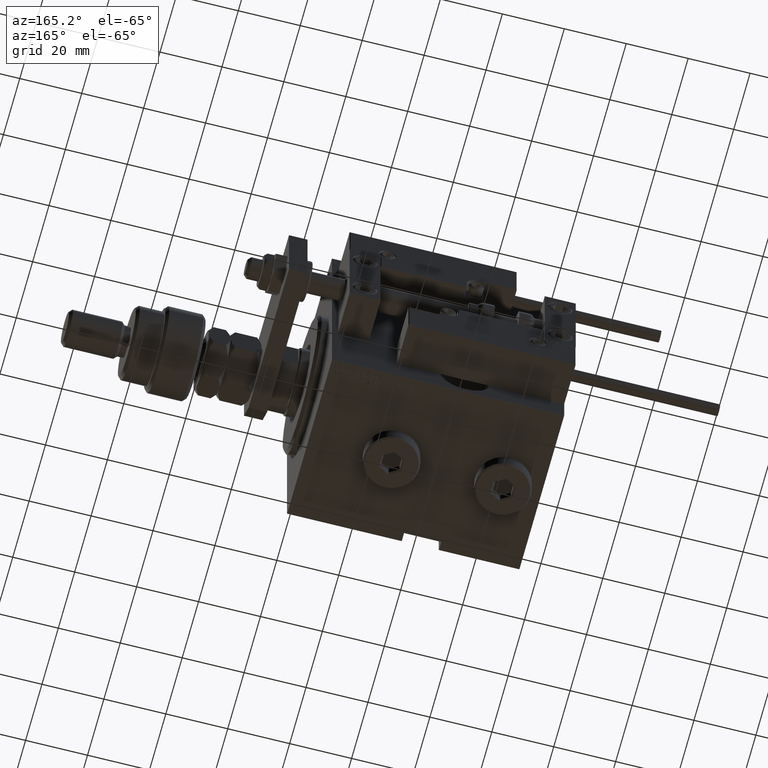
[diagram: clean part render]
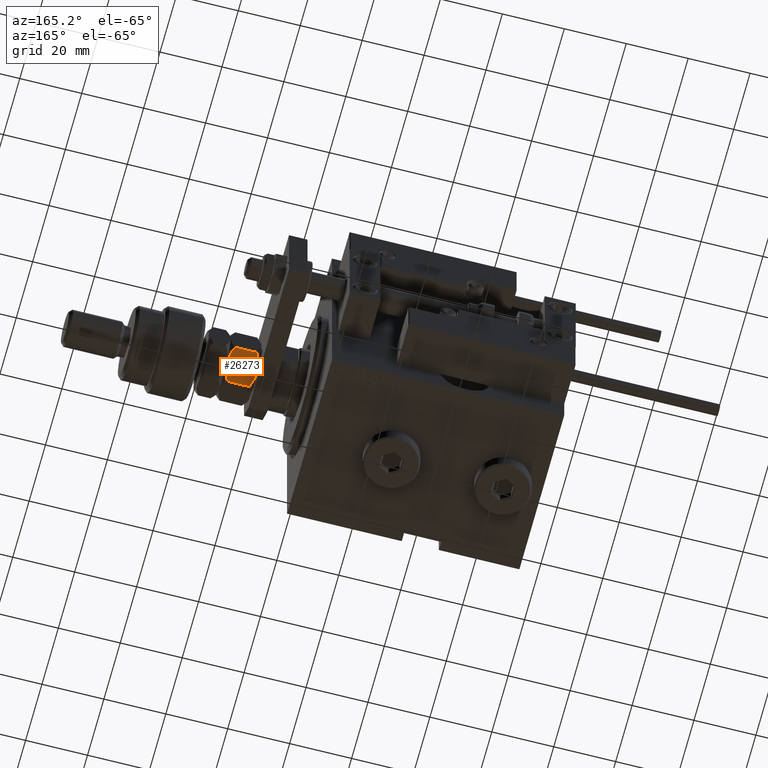
[diagram: same view with one face highlighted and labeled with its STEP entity id]
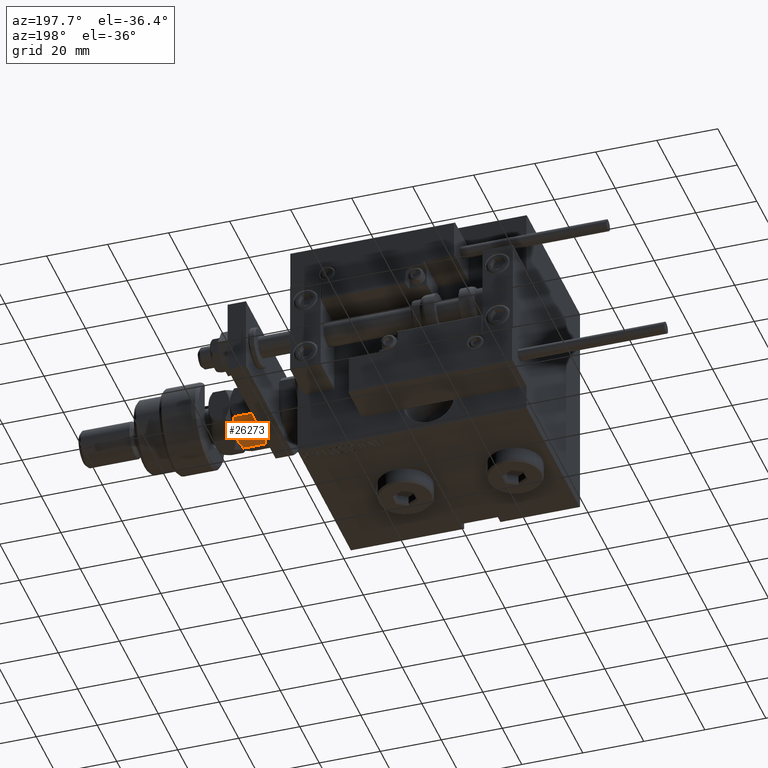
[diagram: same view with one face highlighted and labeled with its STEP entity id]
A machine part, auxiliary view. The second image highlights one B-rep face of the part: STEP entity #26273.
A second angle (auxiliary view) of the same face is appended — the face is thin or edge-on in the first view.
In plain terms, the highlighted planar face has unit normal (0, -0.5, 0.866).
Its self-contained STEP definition (entity closure, byte-faithful):
#825 = CARTESIAN_POINT ( 'NONE',  ( 3.091726368128225655, 9.184646063703393537, 0.1797418547120336607 ) ) ;
#1358 = VERTEX_POINT ( 'NONE', #13332 ) ;
#2118 = ORIENTED_EDGE ( 'NONE', *, *, #17212, .T. ) ;
#3269 = CARTESIAN_POINT ( 'NONE',  ( 3.111617971331827270, 9.173161641239184760, 9.854124384224535405 ) ) ;
#3812 = CARTESIAN_POINT ( 'NONE',  ( -3.412354640325339130E-17, 10.96965511460288667, 8.530344885397118659 ) ) ;
#4032 = AXIS2_PLACEMENT_3D ( 'NONE', #6812, #47361, #34845 ) ;
#4785 = CARTESIAN_POINT ( 'NONE',  ( 0.000000000000000000, 10.96965511460288667, 10.00000000000000000 ) ) ;
#4816 = CARTESIAN_POINT ( 'NONE',  ( 7.043584025308272669E-16, 10.96965511460288667, 1.469655114602882007 ) ) ;
#5281 = B_SPLINE_CURVE_WITH_KNOTS ( 'NONE', 3,
 ( #9899, #6069, #30293, #46882, #38730, #18050 ),
 .UNSPECIFIED., .F., .F.,
 ( 4, 2, 4 ),
 ( 0.005685775058177688912, 0.008508623398180321928, 0.01133147173818295668 ),
 .UNSPECIFIED. ) ;
#6069 = CARTESIAN_POINT ( 'NONE',  ( 5.576215397865947665, 7.750225653585646413, -3.354250471127028357E-16 ) ) ;
#6812 = CARTESIAN_POINT ( 'NONE',  ( 9.500000000000000000, 5.484827557301445111, 10.00000000000000000 ) ) ;
#7274 = ORIENTED_EDGE ( 'NONE', *, *, #44285, .F. ) ;
#8098 = EDGE_CURVE ( 'NONE', #46154, #21728, #18416, .T. ) ;
#8596 = B_SPLINE_CURVE_WITH_KNOTS ( 'NONE', 3,
 ( #53030, #24511, #3269, #28584, #28856, #3812 ),
 .UNSPECIFIED., .F., .F.,
 ( 4, 2, 4 ),
 ( 0.005685775058177690647, 0.008508623398180323663, 0.01133147173818295668 ),
 .UNSPECIFIED. ) ;
#8798 = CARTESIAN_POINT ( 'NONE',  ( 8.755131854751343923, 5.914877381471537632, 8.960394709567205851 ) ) ;
#9157 = LINE ( 'NONE', #4785, #35019 ) ;
#9413 = B_SPLINE_CURVE_WITH_KNOTS ( 'NONE', 3,
 ( #26133, #41648, #17433, #49804, #825, #13087, #22049, #42721 ),
 .UNSPECIFIED., .F., .F.,
 ( 4, 2, 2, 4 ),
 ( 2.544312669947371985E-07, 0.002843014744722341131, 0.004264394901450013937, 0.005685775058177688912 ),
 .UNSPECIFIED. ) ;
#9899 = CARTESIAN_POINT ( 'NONE',  ( 4.749999999999998224, 8.227241335952168555, 0.000000000000000000 ) ) ;
#10923 = DIRECTION ( 'NONE',  ( -0.000000000000000000, -0.000000000000000000, -1.000000000000000000 ) ) ;
#12329 = EDGE_CURVE ( 'NONE', #35209, #12609, #9157, .T. ) ;
#12609 = VERTEX_POINT ( 'NONE', #4816 ) ;
#13087 = CARTESIAN_POINT ( 'NONE',  ( 3.911732050025009677, 8.711215562523262790, 0.03770576873299955750 ) ) ;
#13311 = ORIENTED_EDGE ( 'NONE', *, *, #49082, .F. ) ;
#13332 = CARTESIAN_POINT ( 'NONE',  ( 4.749999999999998224, 8.227241335952168555, 0.000000000000000000 ) ) ;
#16416 = CARTESIAN_POINT ( 'NONE',  ( 7.993405681187616629, 6.354660192827334519, 9.325825117528722785 ) ) ;
#16683 = CARTESIAN_POINT ( 'NONE',  ( 4.750000000000000888, 8.227241335952163226, 10.00000000000000000 ) ) ;
#17212 = EDGE_CURVE ( 'NONE', #46154, #49396, #19337, .T. ) ;
#17433 = CARTESIAN_POINT ( 'NONE',  ( 1.506594318812382260, 10.09982247907699637, 0.6741748824712761046 ) ) ;
#18050 = CARTESIAN_POINT ( 'NONE',  ( 9.500000000000000000, 5.484827557301445999, 1.469655114602884671 ) ) ;
#18416 = B_SPLINE_CURVE_WITH_KNOTS ( 'NONE', 3,
 ( #53631, #8798, #16416, #40897, #45241, #49586, #21024, #16683 ),
 .UNSPECIFIED., .F., .F.,
 ( 4, 2, 2, 4 ),
 ( 2.544312669948822529E-07, 0.002843014744722341565, 0.004264394901450016540, 0.005685775058177690647 ),
 .UNSPECIFIED. ) ;
#19337 = LINE ( 'NONE', #19600, #29047 ) ;
#19600 = CARTESIAN_POINT ( 'NONE',  ( 9.500000000000000000, 5.484827557301445111, 10.00000000000000000 ) ) ;
#19817 = ORIENTED_EDGE ( 'NONE', *, *, #35396, .F. ) ;
#21024 = CARTESIAN_POINT ( 'NONE',  ( 5.166021702288277062, 7.987051094147303409, 10.00000000000000000 ) ) ;
#21355 = CARTESIAN_POINT ( 'NONE',  ( 9.500000000000000000, 5.484827557301445111, 8.530344885397115107 ) ) ;
#21728 = VERTEX_POINT ( 'NONE', #45332 ) ;
#22049 = CARTESIAN_POINT ( 'NONE',  ( 4.333978297711723826, 8.467431577757027483, -4.811147140404423954E-16 ) ) ;
#24511 = CARTESIAN_POINT ( 'NONE',  ( 3.923784602134051447, 8.704257018318687145, 10.00000000000000178 ) ) ;
#26133 = CARTESIAN_POINT ( 'NONE',  ( 7.043584025308272669E-16, 10.96965511460288667, 1.469655114602882007 ) ) ;
#26273 = ADVANCED_FACE ( 'NONE', ( #27236 ), #44072, .F. ) ;
#27236 = FACE_OUTER_BOUND ( 'NONE', #28633, .T. ) ;
#28584 = CARTESIAN_POINT ( 'NONE',  ( 1.509821400858456730, 10.09795932238899852, 9.328363030548736390 ) ) ;
#28633 = EDGE_LOOP ( 'NONE', ( #13311, #41039, #19817, #49224, #2118, #7274 ) ) ;
#28856 = CARTESIAN_POINT ( 'NONE',  ( 0.7440058743609633263, 10.54010312276191996, 8.959896877238174184 ) ) ;
#29047 = VECTOR ( 'NONE', #10923, 1000.000000000000000 ) ;
#30060 = CARTESIAN_POINT ( 'NONE',  ( -3.412354640325339130E-17, 10.96965511460288667, 8.530344885397118659 ) ) ;
#30293 = CARTESIAN_POINT ( 'NONE',  ( 6.388382028668172730, 7.281321030665154126, 0.1458756157754674820 ) ) ;
#34845 = DIRECTION ( 'NONE',  ( 0.8660254037844387076, -0.4999999999999997780, 0.000000000000000000 ) ) ;
#35019 = VECTOR ( 'NONE', #46151, 1000.000000000000000 ) ;
#35209 = VERTEX_POINT ( 'NONE', #30060 ) ;
#35396 = EDGE_CURVE ( 'NONE', #21728, #35209, #8596, .T. ) ;
#38730 = CARTESIAN_POINT ( 'NONE',  ( 8.755994125639036341, 5.914379549142410042, 1.040103122761829368 ) ) ;
#40897 = CARTESIAN_POINT ( 'NONE',  ( 6.809745054052672941, 7.038046974532853994, 9.716537861568809831 ) ) ;
#41039 = ORIENTED_EDGE ( 'NONE', *, *, #12329, .F. ) ;
#41648 = CARTESIAN_POINT ( 'NONE',  ( 0.7448681452486597410, 10.53960529043279415, 1.039605290432792151 ) ) ;
#42721 = CARTESIAN_POINT ( 'NONE',  ( 4.749999999999998224, 8.227241335952168555, 0.000000000000000000 ) ) ;
#44072 = PLANE ( 'NONE',  #4032 ) ;
#44285 = EDGE_CURVE ( 'NONE', #1358, #49396, #5281, .T. ) ;
#45241 = CARTESIAN_POINT ( 'NONE',  ( 6.408273631871775677, 7.269836608200939132, 9.820258145287965590 ) ) ;
#45332 = CARTESIAN_POINT ( 'NONE',  ( 4.750000000000000888, 8.227241335952163226, 10.00000000000000000 ) ) ;
#46151 = DIRECTION ( 'NONE',  ( -0.000000000000000000, -0.000000000000000000, -1.000000000000000000 ) ) ;
#46154 = VERTEX_POINT ( 'NONE', #21355 ) ;
#46882 = CARTESIAN_POINT ( 'NONE',  ( 7.990178599141542826, 6.356523349515333265, 0.6716369694512659416 ) ) ;
#47361 = DIRECTION ( 'NONE',  ( -0.4999999999999998335, -0.8660254037844388186, 0.000000000000000000 ) ) ;
#49082 = EDGE_CURVE ( 'NONE', #12609, #1358, #9413, .T. ) ;
#49224 = ORIENTED_EDGE ( 'NONE', *, *, #8098, .F. ) ;
#49396 = VERTEX_POINT ( 'NONE', #49735 ) ;
#49586 = CARTESIAN_POINT ( 'NONE',  ( 5.588267949974992987, 7.743267109381068991, 9.962294231267000200 ) ) ;
#49735 = CARTESIAN_POINT ( 'NONE',  ( 9.500000000000000000, 5.484827557301445999, 1.469655114602884671 ) ) ;
#49804 = CARTESIAN_POINT ( 'NONE',  ( 2.690254945947325282, 9.416435697371476010, 0.2834621384311878933 ) ) ;
#53030 = CARTESIAN_POINT ( 'NONE',  ( 4.750000000000000888, 8.227241335952163226, 10.00000000000000000 ) ) ;
#53631 = CARTESIAN_POINT ( 'NONE',  ( 9.500000000000000000, 5.484827557301445111, 8.530344885397115107 ) ) ;